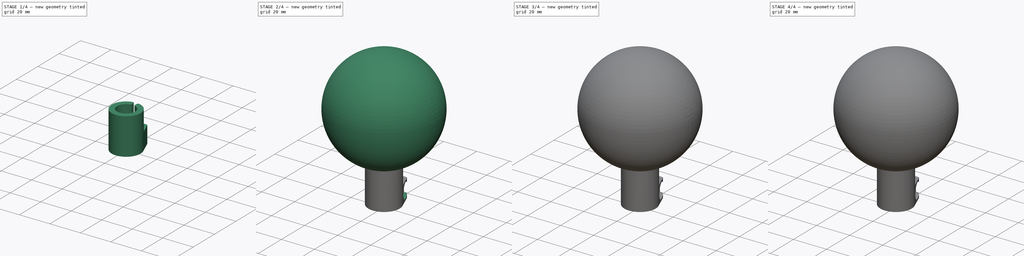
[diagram: build sequence overview — one tinted view per stage of 4, left to right]
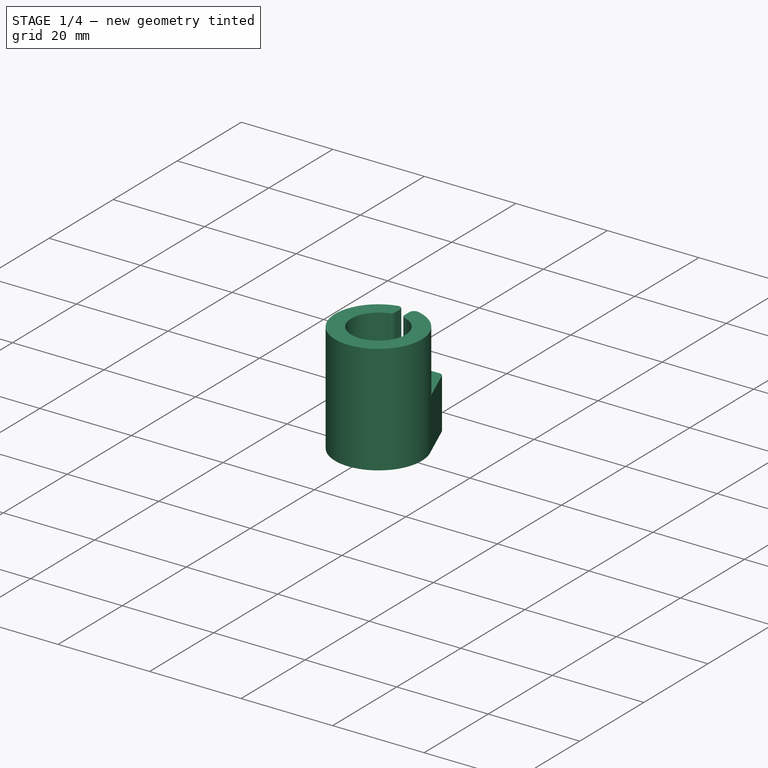
[diagram: stage 1 of 4 — iso view after this stage's code; geometry added in this stage tinted green]
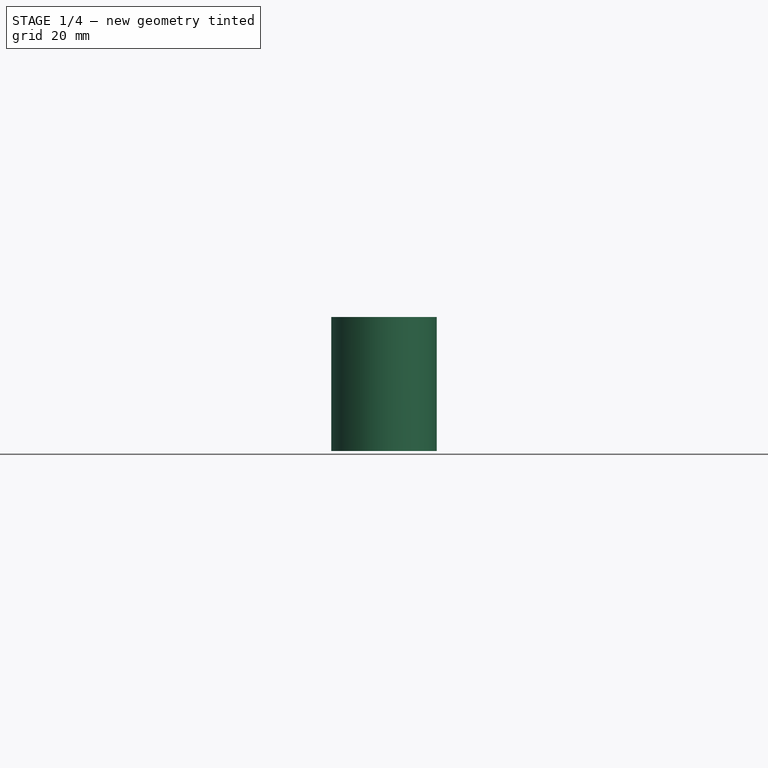
[diagram: stage 1 of 4 — front view after this stage's code; geometry added in this stage tinted green]
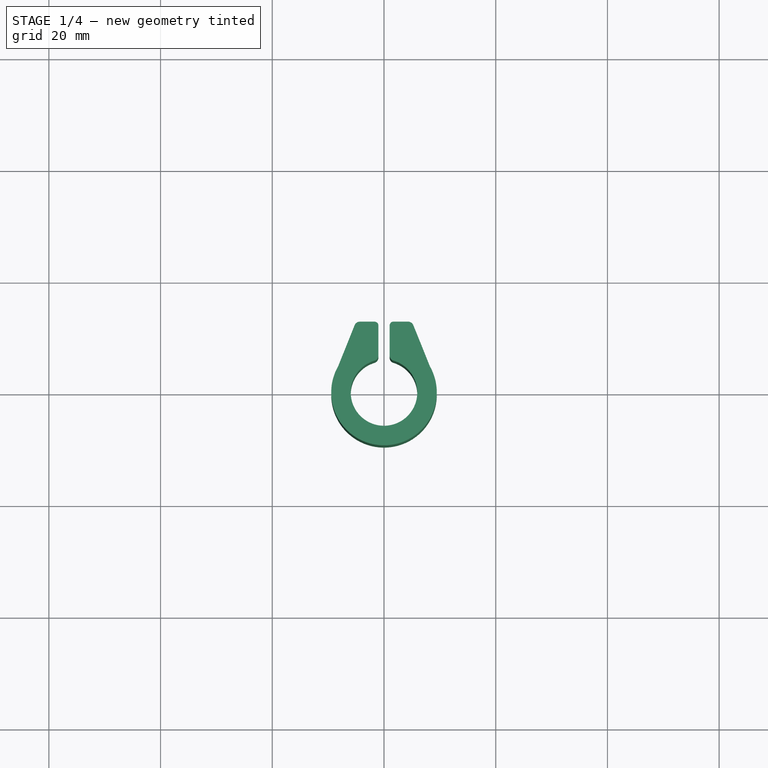
[diagram: stage 1 of 4 — top view after this stage's code; geometry added in this stage tinted green]
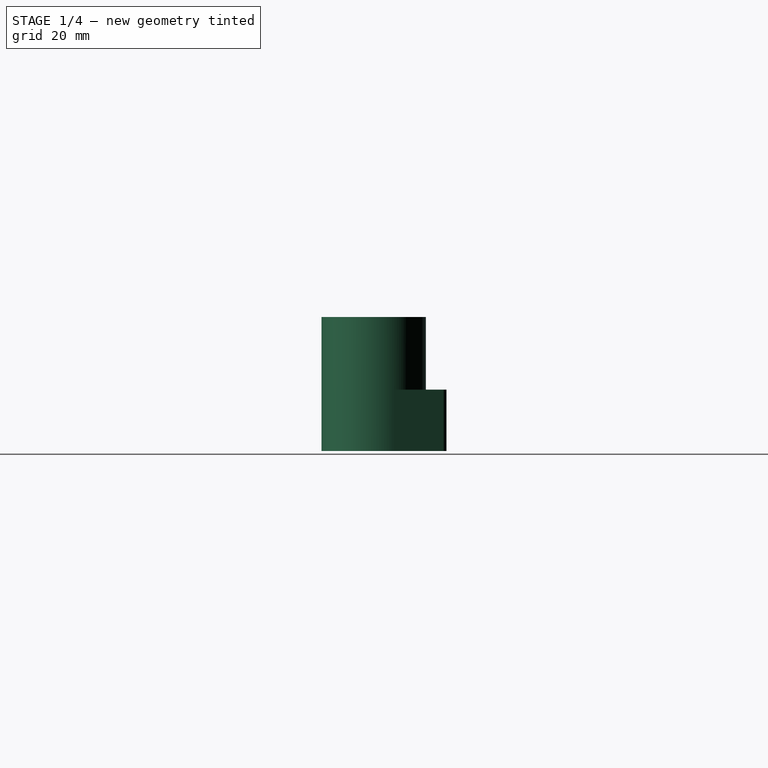
[diagram: stage 1 of 4 — right view after this stage's code; geometry added in this stage tinted green]
FCSTD DOCUMENT  (FreeCAD 1.0R39109 (Git))
Label: Volvo_shift_knob
License: All rights reserved
LicenseURL: https://en.wikipedia.org/wiki/All_rights_reserved
objects: Sketcher::SketchObject×5, PartDesign::Pad×4, PartDesign::Body×4, Part::MultiFuse×2, Part::Cut×2, Spreadsheet::Sheet×1, Part::Sphere×1, PartDesign::Revolution×1
note: 34 computed .brp shape members not serialized (recipe doc carries the construction recipe); baked Part::Feature solids carry a one-line shape summary decoded from their .brp

FEATURE [Sketcher::SketchObject] Sketch002
  ArcFitTolerance = 1e-06
  AttachmentSupport = -> [XY_Plane002]
  FullyConstrained = true
  MakeInternals = false
  MapMode = 5
  expr: Constraints[10] = Spreadsheet.sd + 7
  expr: Constraints[1] = Spreadsheet.sd
  expr: Constraints[50] = Spreadsheet.sd / 1 + Spreadsheet.fl
  sketch-geometry (20):
    g0: ArcOfCircle CenterX=0 CenterY=0 CenterZ=0 NormalX=0 NormalY=0 NormalZ=1 AngleXU=0 Radius=5.955 StartAngle=1.86248 EndAngle=7.5623
    g1: LineSegment StartX=-1 StartY=6.66123 StartZ=0 EndX=-1 EndY=12.21 EndZ=0
    g2: LineSegment StartX=1 StartY=6.66123 StartZ=0 EndX=1 EndY=12.21 EndZ=0
    g3: ArcOfCircle CenterX=0 CenterY=0 CenterZ=0 NormalX=0 NormalY=0 NormalZ=1 AngleXU=0 Radius=9.455 StartAngle=2.75931 EndAngle=6.66547
    g4: LineSegment StartX=-8.7725 StartY=3.52707 StartZ=0 EndX=-5.25208 EndY=12.283 EndZ=0
    g5: LineSegment StartX=-4.32426 StartY=12.91 StartZ=0 EndX=-1.7 EndY=12.91 EndZ=0
    g6: LineSegment StartX=8.7725 StartY=3.52707 StartZ=0 EndX=5.25208 EndY=12.283 EndZ=0
    g7: LineSegment StartX=4.32426 StartY=12.91 StartZ=0 EndX=1.7 EndY=12.91 EndZ=0
    g8: ArcOfCircle CenterX=-2 CenterY=6.66123 CenterZ=0 NormalX=0 NormalY=0 NormalZ=1 AngleXU=0 Radius=1 StartAngle=5.00407 EndAngle=6.28319
    g9: ArcOfCircle CenterX=2 CenterY=6.66123 CenterZ=0 NormalX=0 NormalY=0 NormalZ=1 AngleXU=0 Radius=1 StartAngle=3.14159 EndAngle=4.42071
    g10: LineSegment [constr] StartX=0 StartY=0 StartZ=0 EndX=2 EndY=6.66123 EndZ=0
    g11: LineSegment [constr] StartX=0 StartY=0 StartZ=0 EndX=-2 EndY=6.66123 EndZ=0
    g12: ArcOfCircle CenterX=-1.7 CenterY=12.21 CenterZ=0 NormalX=0 NormalY=0 NormalZ=1 AngleXU=0 Radius=0.7 StartAngle=-9e-16 EndAngle=1.5708
    g13: GeomPoint [constr] X=-1 Y=12.91 Z=0
    g14: ArcOfCircle CenterX=1.7 CenterY=12.21 CenterZ=0 NormalX=0 NormalY=0 NormalZ=1 AngleXU=0 Radius=0.7 StartAngle=1.5708 EndAngle=3.14159
    g15: GeomPoint [constr] X=1 Y=12.91 Z=0
    g16: ArcOfCircle CenterX=-4.32426 CenterY=11.91 CenterZ=0 NormalX=0 NormalY=0 NormalZ=1 AngleXU=0 Radius=1 StartAngle=1.5708 EndAngle=2.75931
    g17: GeomPoint [constr] X=-5 Y=12.91 Z=0
    g18: ArcOfCircle CenterX=4.32426 CenterY=11.91 CenterZ=0 NormalX=0 NormalY=0 NormalZ=1 AngleXU=0 Radius=1 StartAngle=0.382281 EndAngle=1.5708
    g19: GeomPoint [constr] X=5 Y=12.91 Z=0
  constraints (51):
    c: Coincident(g0,g-1)
    c: Diameter(g0) = 11.91
    c: Horizontal(g15,g13)
    c: Coincident(g3,g0)
    c: Horizontal(g0,g0)
    c: Vertical(g2)
    c: Vertical(g1)
    c: Coincident(g4,g3)
    c: Horizontal(g5)
    c: Horizontal(g7)
    c: Diameter(g3) = 18.91
    c: DistanceX(g17,g13) = 4
    c: Coincident(g8,g1)
    c: Coincident(g8,g0)
    c: Coincident(g9,g2)
    c: Coincident(g9,g0)
    c: Coincident(g10,g0)
    c: Coincident(g10,g9)
    c: Coincident(g11,g0)
    c: Coincident(g11,g8)
    c: PointOnObject(g0,g11)
    c: PointOnObject(g0,g10)
    c: Horizontal(g9,g2)
    c: Horizontal(g2,g1)
    c: Horizontal(g1,g8)
    c: Radius(g9) = 1
    c: DistanceX(g1,g2) = 2
    c: Horizontal(g3,g3)
    c: Tangent(g6,g3) = -1.5708
    c: PointOnObject(g13,g1)
    c: PointOnObject(g13,g5)
    c: Tangent(g1,g12) = -1.5708
    c: Tangent(g5,g12) = 1.5708
    c: PointOnObject(g15,g2)
    c: PointOnObject(g15,g7)
    c: Tangent(g2,g14) = 1.5708
    c: Tangent(g7,g14) = -1.5708
    c: Horizontal(g14,g12)
    c: DistanceX(g15,g7) = 0.7
    c: PointOnObject(g17,g4)
    c: PointOnObject(g17,g5)
    c: Tangent(g4,g16) = 1.5708
    c: Tangent(g5,g16) = 1.5708
    c: PointOnObject(g19,g6)
    c: PointOnObject(g19,g7)
    c: Tangent(g6,g18) = -1.5708
    c: Tangent(g7,g18) = -1.5708
    c: DistanceY(g16,g5) = 1
    c: Horizontal(g16,g18)
    c: Horizontal(g4,g6)
    c: DistanceY(g0,g7) = 12.91
FEATURE [PartDesign::Pad] Pad002
  Direction = (0,0,1)
  Length = 11
  Length2 = 10
  Profile = -> Sketch002
  ReferenceAxis = -> Sketch002 [N_Axis]
  Refine = true
  Suppressed = false
  Type = 0
  expr: Length = Spreadsheet.ct
FEATURE [PartDesign::Body] Body003
  AllowCompound = false
  Group = -> [Sketch003,Revolution]
  Origin = -> Origin003
  Placement = pos=(0,9.455,5.5) rot=(0,0,1;0rad)
  Tip = -> Revolution
  expr: .Placement.Base.y = Spreadsheet.sd / 2 + Spreadsheet.fl / 2 + 3
  expr: .Placement.Base.z = Spreadsheet.ct / 2
FEATURE [Sketcher::SketchObject] Sketch004
  ArcFitTolerance = 1e-06
  AttachmentSupport = -> [Pad002]
  FullyConstrained = true
  MakeInternals = false
  MapMode = 5
  Placement = pos=(0,0,11) rot=(0,0,1;0rad)
  expr: Constraints[12] = Spreadsheet.sd
  expr: Constraints[13] = Spreadsheet.sd + 7
  sketch-geometry (9):
    g0: ArcOfCircle CenterX=0 CenterY=0 CenterZ=0 NormalX=0 NormalY=0 NormalZ=1 AngleXU=0 Radius=5.955 StartAngle=1.86248 EndAngle=7.5623
    g1: ArcOfCircle CenterX=0 CenterY=0 CenterZ=0 NormalX=0 NormalY=0 NormalZ=1 AngleXU=0 Radius=9.455 StartAngle=1.80961 EndAngle=7.61517
    g2: ArcOfCircle CenterX=-2 CenterY=6.66123 CenterZ=0 NormalX=0 NormalY=0 NormalZ=1 AngleXU=0 Radius=1 StartAngle=5.00407 EndAngle=6.28319
    g3: ArcOfCircle CenterX=-2 CenterY=8.21505 CenterZ=0 NormalX=0 NormalY=0 NormalZ=1 AngleXU=0 Radius=1 StartAngle=-9e-16 EndAngle=1.80961
    g4: ArcOfCircle CenterX=2 CenterY=8.21505 CenterZ=0 NormalX=0 NormalY=0 NormalZ=1 AngleXU=0 Radius=1 StartAngle=1.33199 EndAngle=3.14159
    g5: ArcOfCircle CenterX=2 CenterY=6.66123 CenterZ=0 NormalX=0 NormalY=0 NormalZ=1 AngleXU=0 Radius=1 StartAngle=3.14159 EndAngle=4.42071
    g6: LineSegment StartX=-1 StartY=6.66123 StartZ=0 EndX=-1 EndY=8.21505 EndZ=0
    g7: LineSegment StartX=1 StartY=6.66123 StartZ=0 EndX=1 EndY=8.21505 EndZ=0
    g8: LineSegment [constr] StartX=1 StartY=8.21505 StartZ=0 EndX=-1 EndY=8.21505 EndZ=0
  constraints (23):
    c: Coincident(g0,g-1)
    c: Coincident(g1,g0)
    c: Coincident(g4,g1)
    c: Vertical(g6)
    c: Vertical(g7)
    c: Tangent(g7,g4) = 1.5708
    c: Tangent(g7,g5) = 1.5708
    c: Tangent(g5,g0) = 1.5708
    c: Tangent(g6,g2) = -1.5708
    c: Tangent(g2,g0) = 1.5708
    c: Tangent(g3,g1) = -1.5708
    c: Tangent(g6,g3) = -1.5708
    c: Diameter(g0) = 11.91
    c: Diameter(g1) = 18.91
    c: Radius(g5) = 1
    c: Horizontal(g2,g5)
    c: Horizontal(g0,g0)
    c: Radius(g4) = 1
    c: Horizontal(g4,g3)
    c: Horizontal(g1,g1)
    c: Coincident(g8,g4)
    c: Coincident(g8,g3)
    c: DistanceX(g8,g8) = 2
FEATURE [PartDesign::Pad] Pad003
  BaseFeature = -> Pad002
  Direction = (0,0,1)
  Length = 13
  Length2 = 10
  Profile = -> Sketch004
  ReferenceAxis = -> Sketch004 [N_Axis]
  Refine = true
  Suppressed = false
  Type = 0
  expr: Length = Spreadsheet.sl - Spreadsheet.hd - Spreadsheet.ct
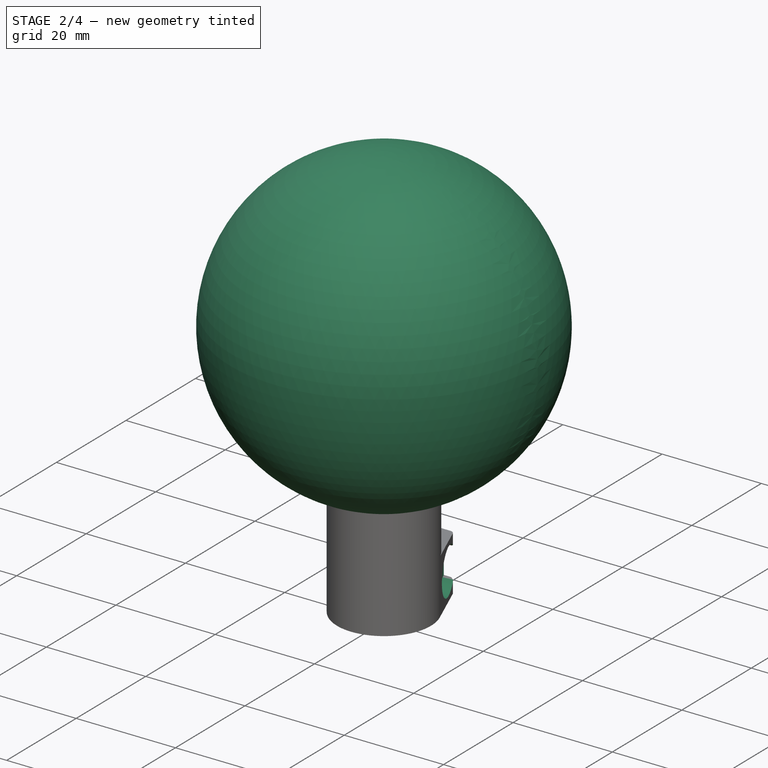
[diagram: stage 2 of 4 — iso view after this stage's code; geometry added in this stage tinted green]
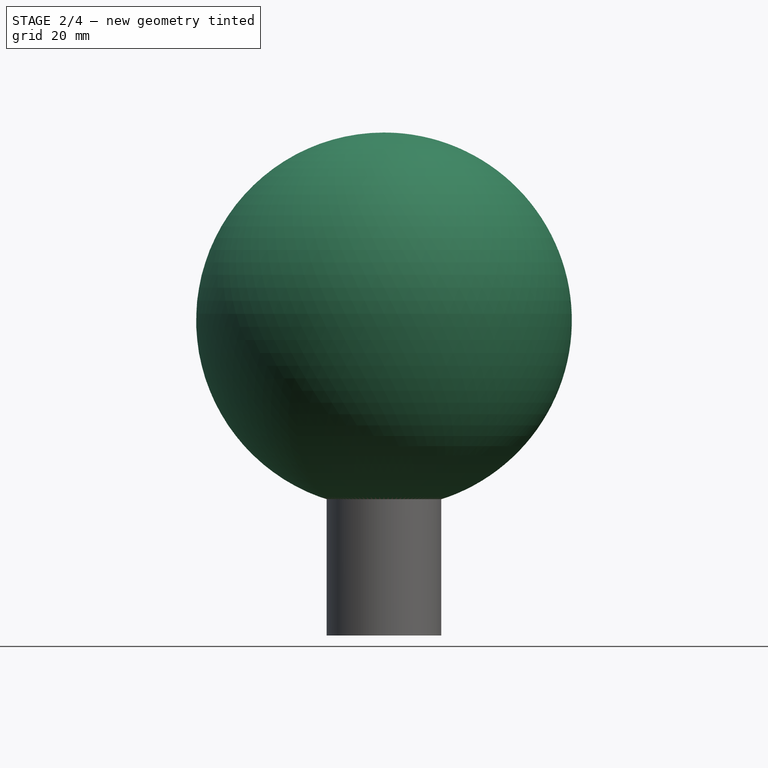
[diagram: stage 2 of 4 — front view after this stage's code; geometry added in this stage tinted green]
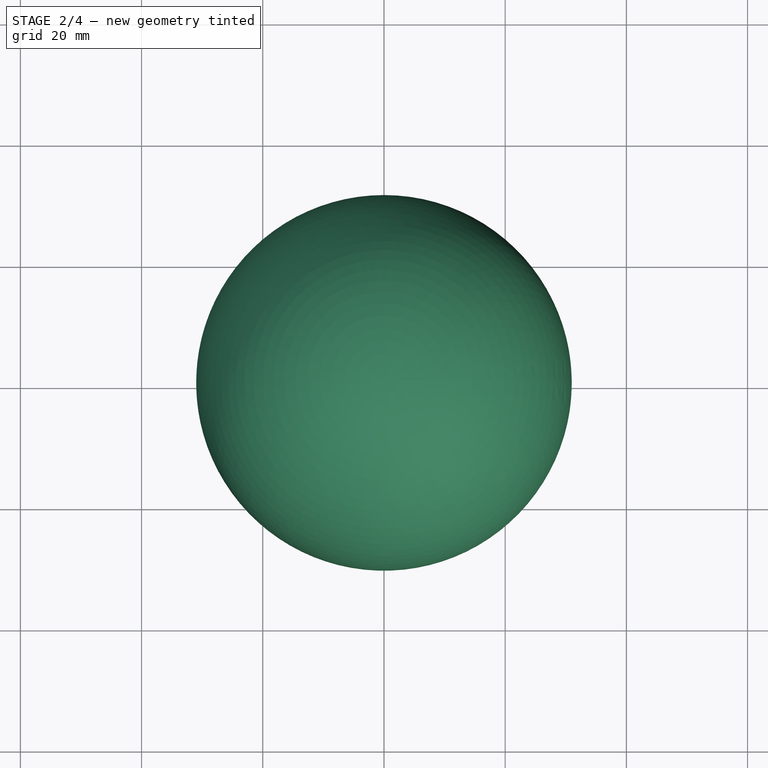
[diagram: stage 2 of 4 — top view after this stage's code; geometry added in this stage tinted green]
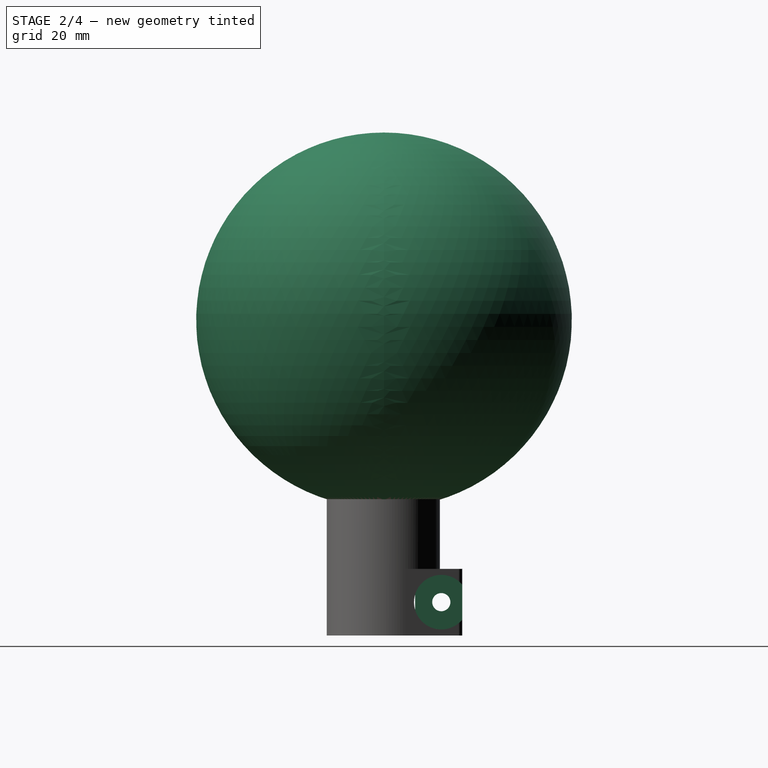
[diagram: stage 2 of 4 — right view after this stage's code; geometry added in this stage tinted green]
FEATURE [Part::Sphere] Sphere
  Angle1 = -90
  Angle2 = 90
  Angle3 = 360
  AttacherType = Attacher::AttachEngine3D
  Placement = pos=(0,0,52) rot=(0,0,1;0rad)
  Radius = 31
  expr: .Placement.Base.z = Spreadsheet.sl - Spreadsheet.hd / 2
  expr: Radius = Spreadsheet.hd / 2 + 3
FEATURE [Sketcher::SketchObject] Sketch003
  ArcFitTolerance = 1e-06
  AttachmentSupport = -> [XY_Plane003]
  FullyConstrained = true
  MakeInternals = false
  MapMode = 5
  expr: Constraints[10] = Spreadsheet.screwhead_dia / 2
  expr: Constraints[11] = Spreadsheet.sd
  expr: Constraints[12] = Spreadsheet.sd
  expr: Constraints[21] = Spreadsheet.shd / 2
  sketch-geometry (8):
    g0: LineSegment StartX=-3 StartY=1.5 StartZ=0 EndX=-3 EndY=4.5 EndZ=0
    g1: LineSegment StartX=-3 StartY=4.5 StartZ=0 EndX=-11.91 EndY=4.5 EndZ=0
    g2: LineSegment StartX=-11.91 StartY=4.5 StartZ=0 EndX=-11.91 EndY=0 EndZ=0
    g3: LineSegment StartX=-11.91 StartY=0 StartZ=0 EndX=11.91 EndY=0 EndZ=0
    g4: LineSegment StartX=11.91 StartY=0 StartZ=0 EndX=11.91 EndY=4.5 EndZ=0
    g5: LineSegment StartX=-3 StartY=1.5 StartZ=0 EndX=3 EndY=1.5 EndZ=0
    g6: LineSegment StartX=3 StartY=1.5 StartZ=0 EndX=3 EndY=4.5 EndZ=0
    g7: LineSegment StartX=3 StartY=4.5 StartZ=0 EndX=11.91 EndY=4.5 EndZ=0
  constraints (24):
    c: Vertical(g0)
    c: Coincident(g1,g0)
    c: Horizontal(g1)
    c: Coincident(g2,g1)
    c: PointOnObject(g2,g-1)
    c: Vertical(g2)
    c: Coincident(g3,g2)
    c: PointOnObject(g3,g-1)
    c: Coincident(g4,g3)
    c: Vertical(g4)
    c: DistanceY(g2,g2) = 4.5
    c: DistanceX(g-1,g3) = 11.91
    c: DistanceX(g2,g-1) = 11.91
    c: Horizontal(g4,g0)
    c: Coincident(g5,g0)
    c: Horizontal(g5)
    c: Coincident(g6,g5)
    c: Vertical(g6)
    c: Coincident(g7,g6)
    c: Coincident(g7,g4)
    c: Horizontal(g7)
    c: DistanceY(g-1,g0) = 1.5
    c: DistanceX(g-1,g5) = 3
    c: DistanceX(g0,g-1) = 3
FEATURE [PartDesign::Revolution] Revolution
  Angle = 360
  Angle2 = 60
  Axis = (1,0,0)
  Base = (0,0,0)
  Profile = -> Sketch003
  ReferenceAxis = -> Sketch003 [H_Axis]
  Refine = true
  Suppressed = false
  Type = 0
FEATURE [PartDesign::Body] Body002
  AllowCompound = false
  Group = -> [Sketch002,Pad002,Sketch004,Pad003]
  Origin = -> Origin002
  Tip = -> Pad003
FEATURE [Part::Cut] Cut
  Base = -> Body002
  Tool = -> Body003
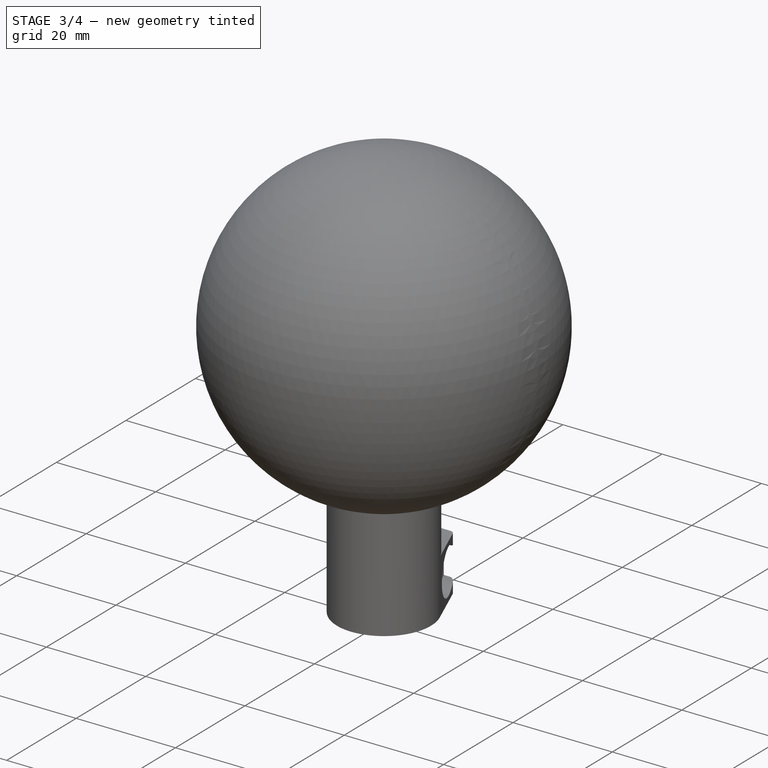
[diagram: stage 3 of 4 — iso view after this stage's code; geometry added in this stage tinted green]
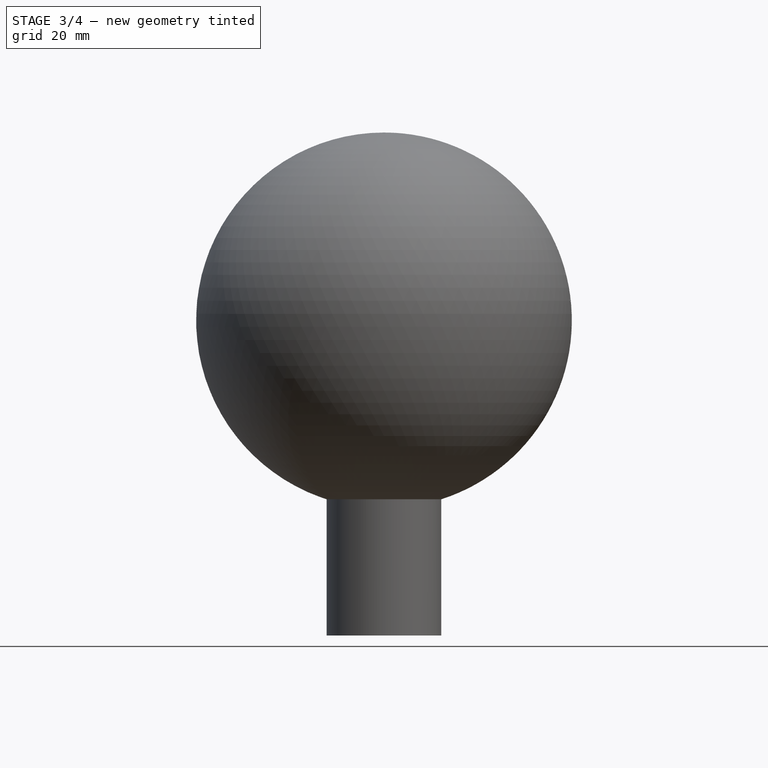
[diagram: stage 3 of 4 — front view after this stage's code; geometry added in this stage tinted green]
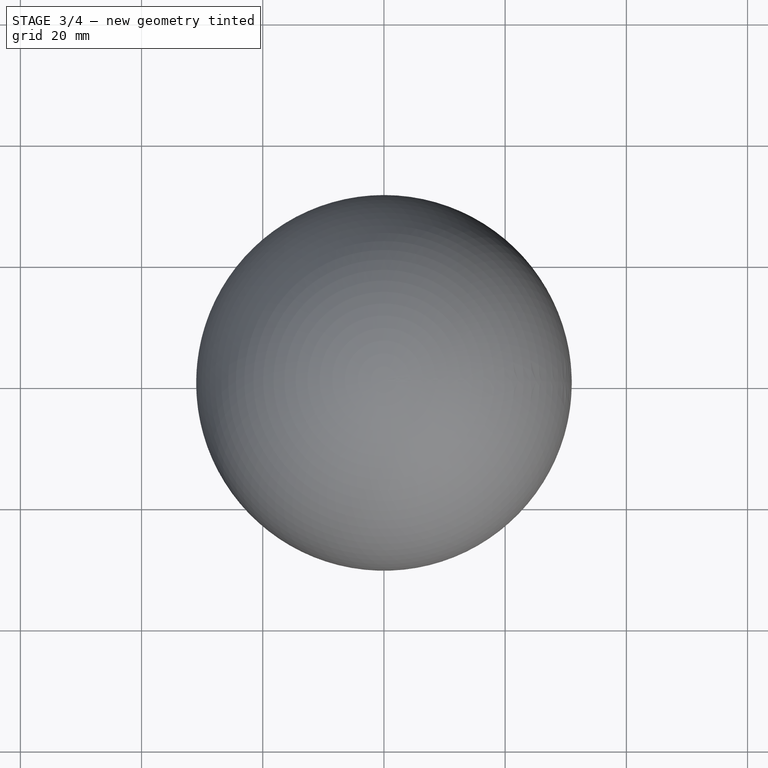
[diagram: stage 3 of 4 — top view after this stage's code; geometry added in this stage tinted green]
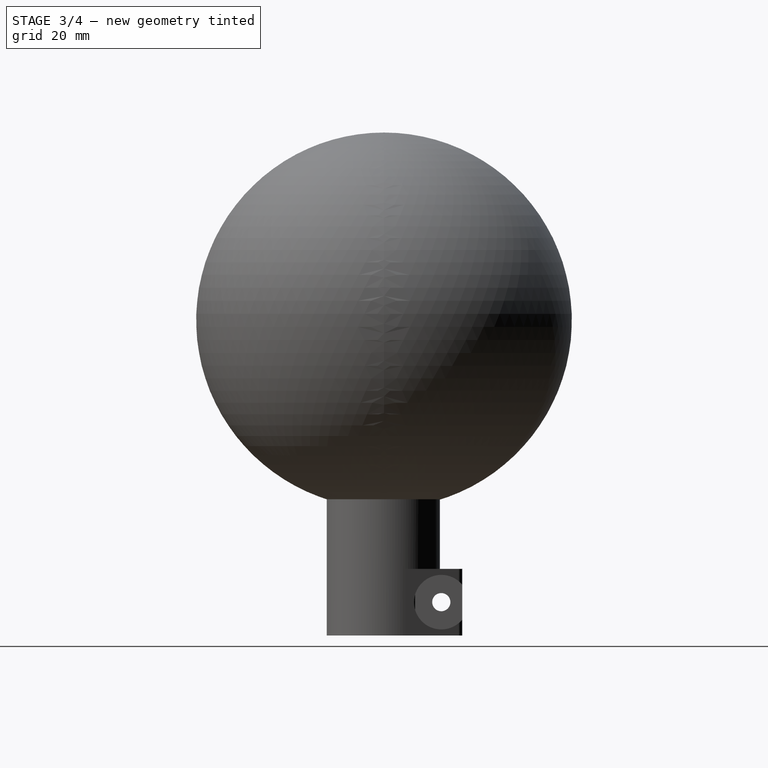
[diagram: stage 3 of 4 — right view after this stage's code; geometry added in this stage tinted green]
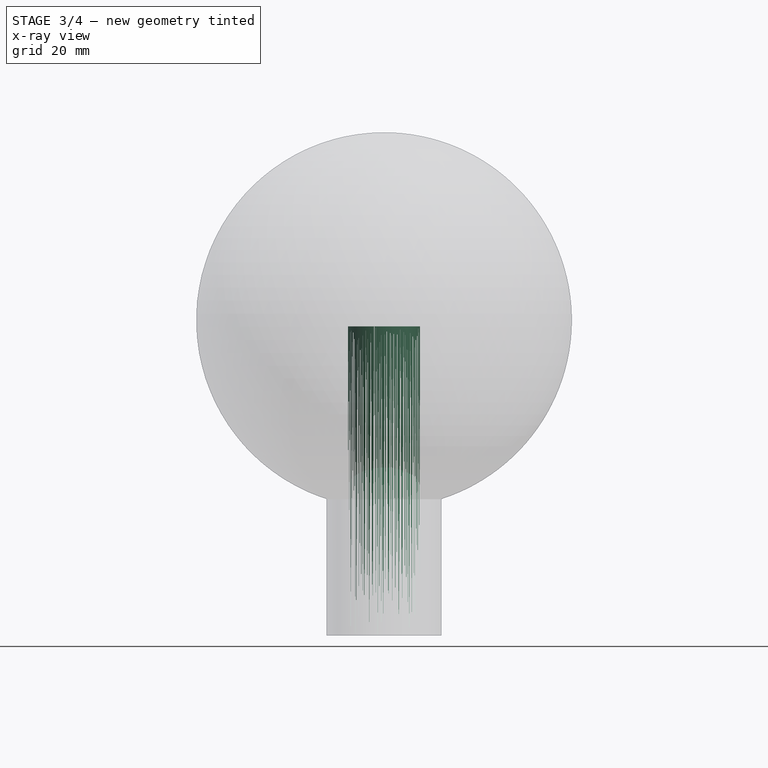
[diagram: stage 3 of 4 — x-ray composite at the front view; earlier geometry ghosted, this stage's added geometry solid]
FEATURE [Sketcher::SketchObject] Sketch
  ArcFitTolerance = 1e-06
  AttachmentSupport = -> [XY_Plane]
  FullyConstrained = true
  MakeInternals = false
  MapMode = 5
  expr: Constraints[10] = Spreadsheet.sd
  expr: Constraints[8] = Spreadsheet.nd
  expr: Constraints[9] = Spreadsheet.nw
  sketch-geometry (4):
    g0: ArcOfCircle CenterX=0 CenterY=0 CenterZ=0 NormalX=0 NormalY=0 NormalZ=1 AngleXU=0 Radius=5.955 StartAngle=1.82543 EndAngle=7.59935
    g1: LineSegment StartX=-1.5 StartY=5.76299 StartZ=0 EndX=-1.5 EndY=3.76299 EndZ=0
    g2: LineSegment StartX=-1.5 StartY=3.76299 StartZ=0 EndX=1.5 EndY=3.76299 EndZ=0
    g3: LineSegment StartX=1.5 StartY=3.76299 StartZ=0 EndX=1.5 EndY=5.76299 EndZ=0
  constraints (12):
    c: Coincident(g0,g-1)
    c: Coincident(g1,g0)
    c: Vertical(g1)
    c: Coincident(g2,g1)
    c: Horizontal(g2)
    c: Coincident(g3,g2)
    c: Coincident(g3,g0)
    c: Vertical(g3)
    c: DistanceY(g3,g3) = 2
    c: DistanceX(g2,g2) = 3
    c: Diameter(g0) = 11.91
    c: Equal(g3,g1)
FEATURE [Spreadsheet::Sheet] Spreadsheet
  cells = A2='sd; B2(sd)=11.91; C2='Shaft Diameter; A3='nw; B3(nw)=3; C3='Notch Width; A4='nd; B4(nd)=2; C4='Notch Depth; A5='nl; B5(nl)=29; C5='Notch Length; A6='sl; B6(sl)=80; C6='Shaft Lenght; A7='hd; B7(hd)=56; C7='Handle Diameter; A11='ct; B11(ct)=11; C11='Clip thickness; A12='shd; B12(shd)=3; C12='Screwhole diameter; A13='fl; B13(fl)=1; C13='Flap length; A14='scrwhead_dia; B14(screwhead_dia)=9; D14='M3 washer
FEATURE [Sketcher::SketchObject] Sketch001
  ArcFitTolerance = 1e-06
  AttachmentSupport = -> [XY_Plane001]
  FullyConstrained = true
  MakeInternals = false
  MapMode = 5
  expr: Constraints[1] = Spreadsheet.sd
  sketch-geometry (1):
    g0: Circle CenterX=0 CenterY=0 CenterZ=0 NormalX=0 NormalY=0 NormalZ=1 AngleXU=0 Radius=5.955
  constraints (2):
    c: Coincident(g0,g-1)
    c: Diameter(g0) = 11.91
FEATURE [PartDesign::Pad] Pad
  Direction = (0,0,1)
  Length = 51.001
  Length2 = 10
  Profile = -> Sketch001
  ReferenceAxis = -> Sketch001 [N_Axis]
  Refine = true
  Suppressed = false
  Type = 0
  expr: Length = Spreadsheet.sl - Spreadsheet.nl + 0.001
FEATURE [PartDesign::Body] Body001
  AllowCompound = false
  Group = -> [Sketch001,Pad]
  Origin = -> Origin001
  Tip = -> Pad
FEATURE [PartDesign::Pad] Pad001
  Direction = (0,0,1)
  Length = 29
  Length2 = 10
  Profile = -> Sketch
  ReferenceAxis = -> Sketch [N_Axis]
  Refine = true
  Suppressed = false
  Type = 0
  expr: Length = Spreadsheet.nl
FEATURE [Part::MultiFuse] Fusion001
  Shapes = -> [Sphere,Cut]
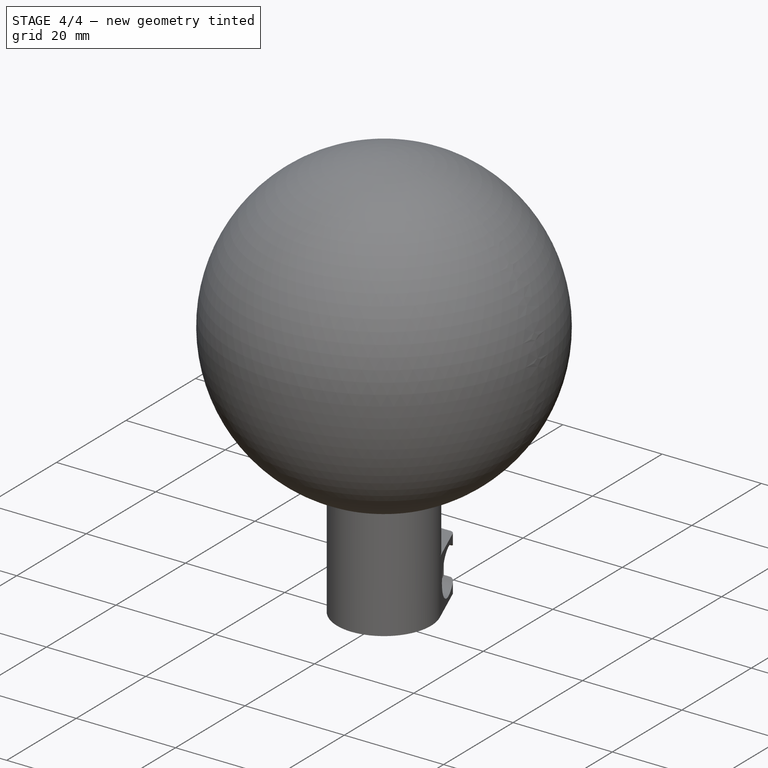
[diagram: stage 4 of 4 — iso view after this stage's code; geometry added in this stage tinted green]
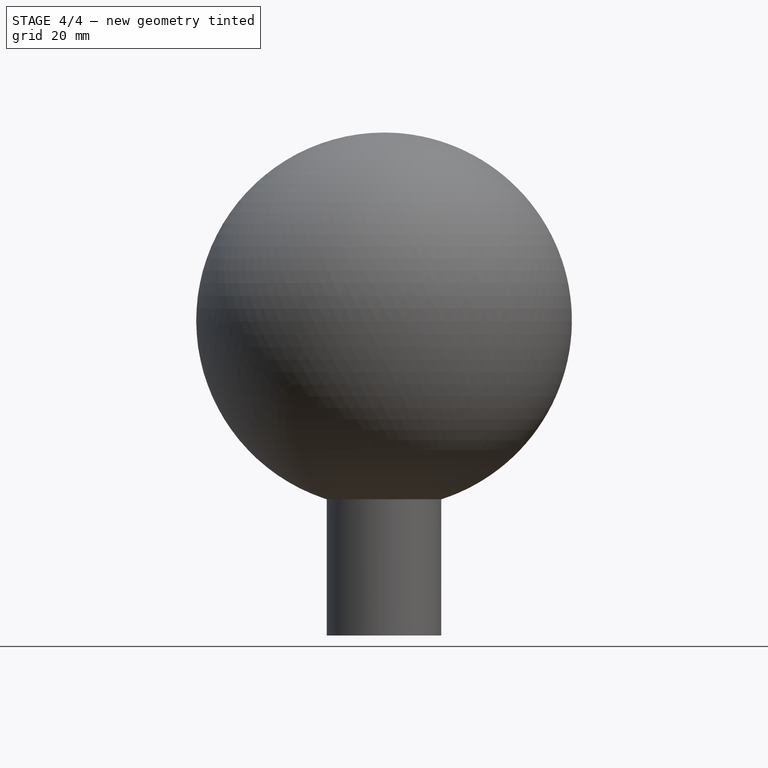
[diagram: stage 4 of 4 — front view after this stage's code; geometry added in this stage tinted green]
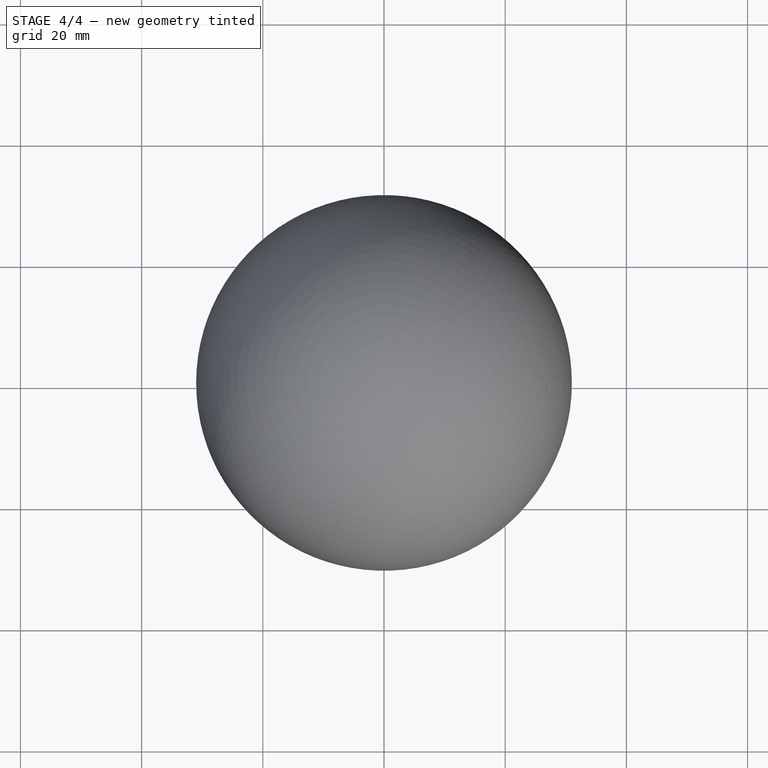
[diagram: stage 4 of 4 — top view after this stage's code; geometry added in this stage tinted green]
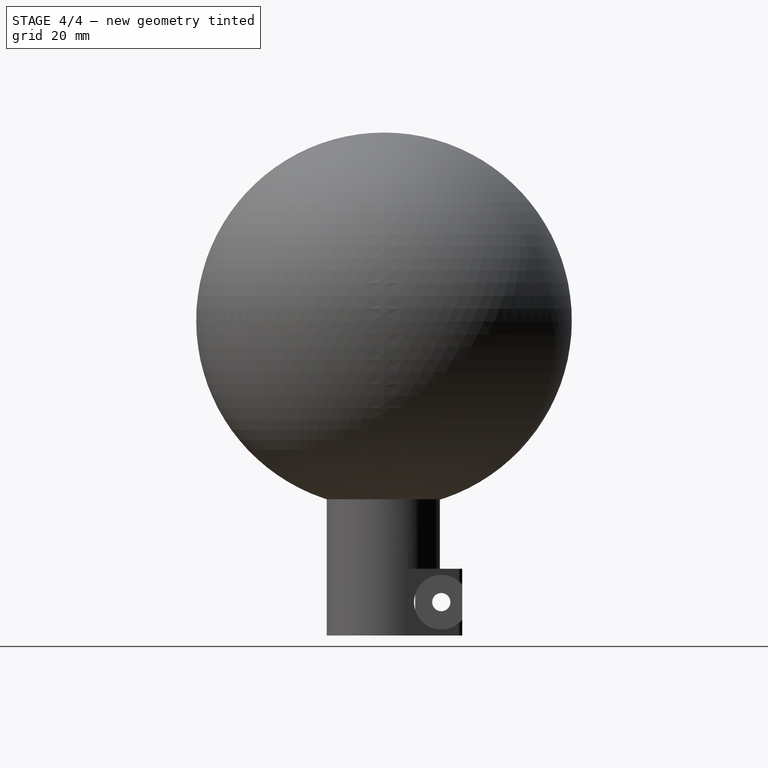
[diagram: stage 4 of 4 — right view after this stage's code; geometry added in this stage tinted green]
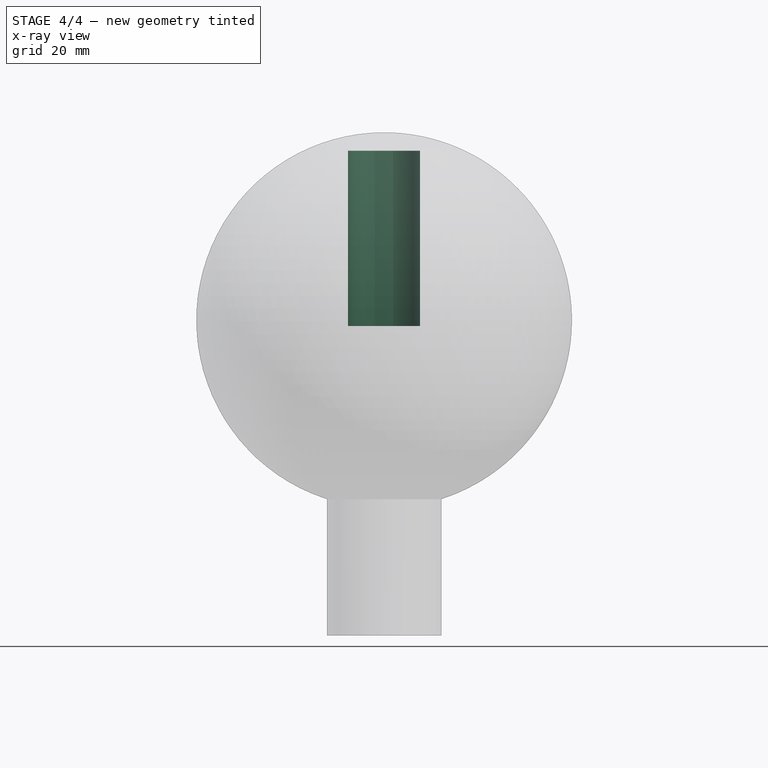
[diagram: stage 4 of 4 — x-ray composite at the front view; earlier geometry ghosted, this stage's added geometry solid]
FEATURE [PartDesign::Body] Body
  AllowCompound = false
  Group = -> [Sketch,Pad001]
  Origin = -> Origin
  Placement = pos=(0,0,51) rot=(0,0,1;0rad)
  Tip = -> Pad001
  expr: .Placement.Base.z = Spreadsheet.sl - Spreadsheet.nl
FEATURE [Part::MultiFuse] Fusion  label="Shifter_shaft"
  Shapes = -> [Body001,Body]
FEATURE [Part::Cut] Cut001
  Base = -> Fusion001
  Tool = -> Fusion
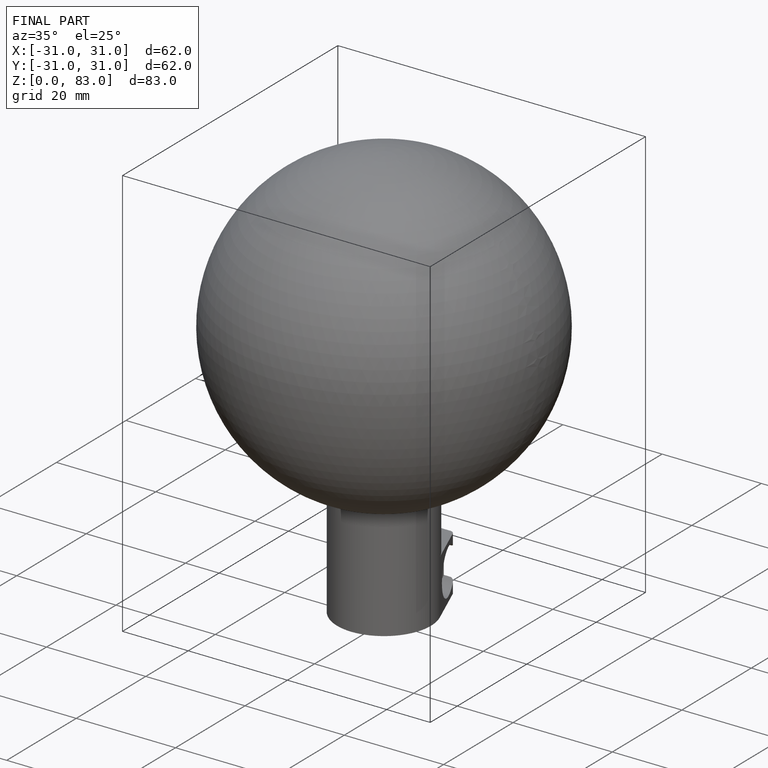
[diagram: finished part — iso view with bounding-box wireframe]
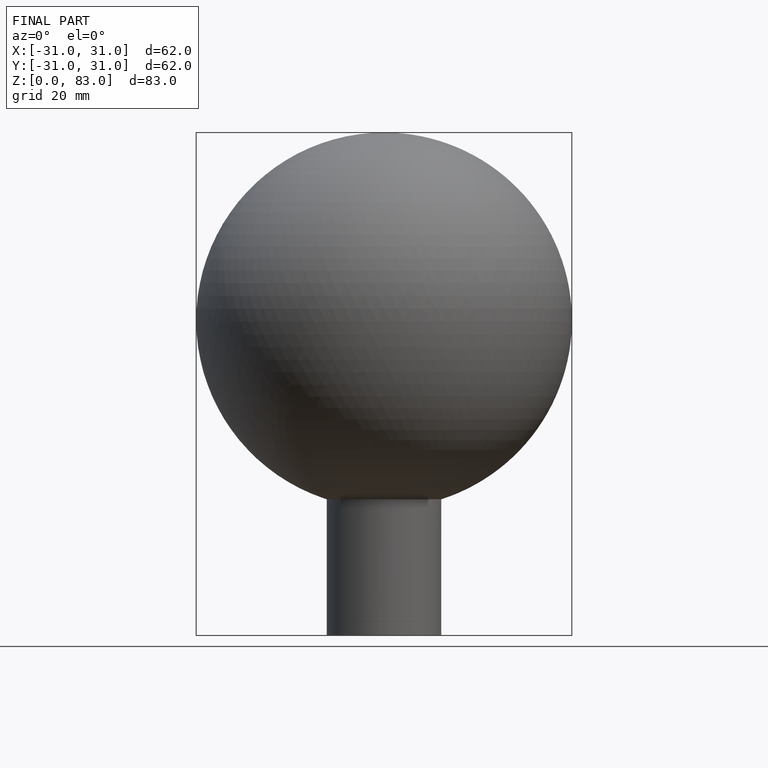
[diagram: finished part — front view with bounding-box wireframe]
